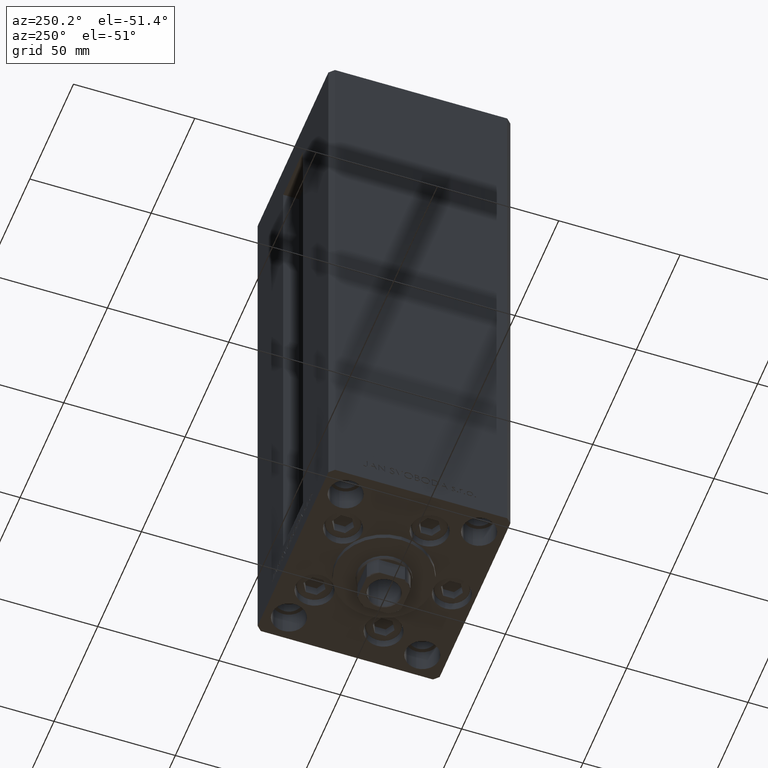
[diagram: clean part render]
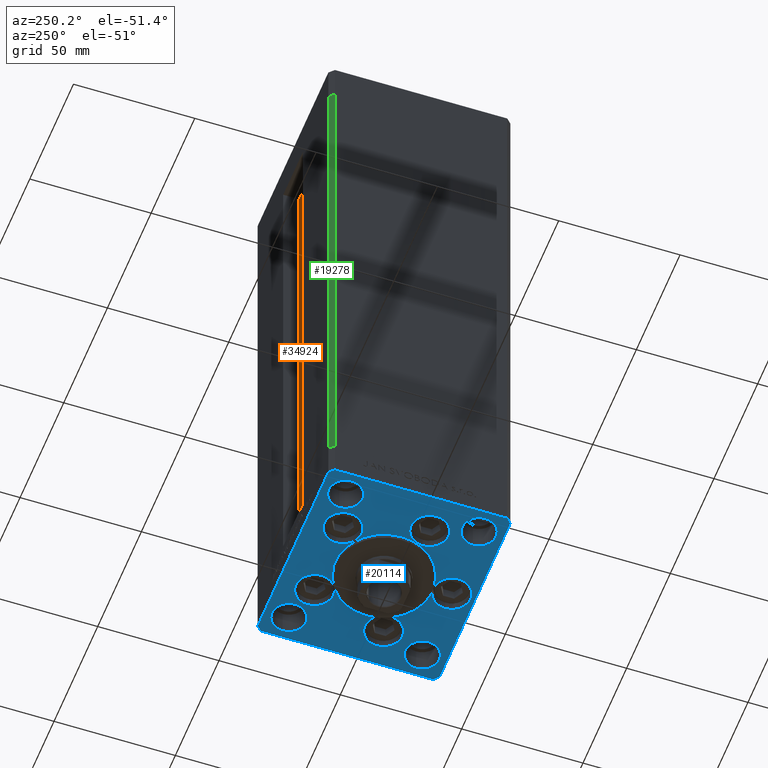
[diagram: same view with three faces highlighted in distinct colors, each labeled with its STEP entity id]
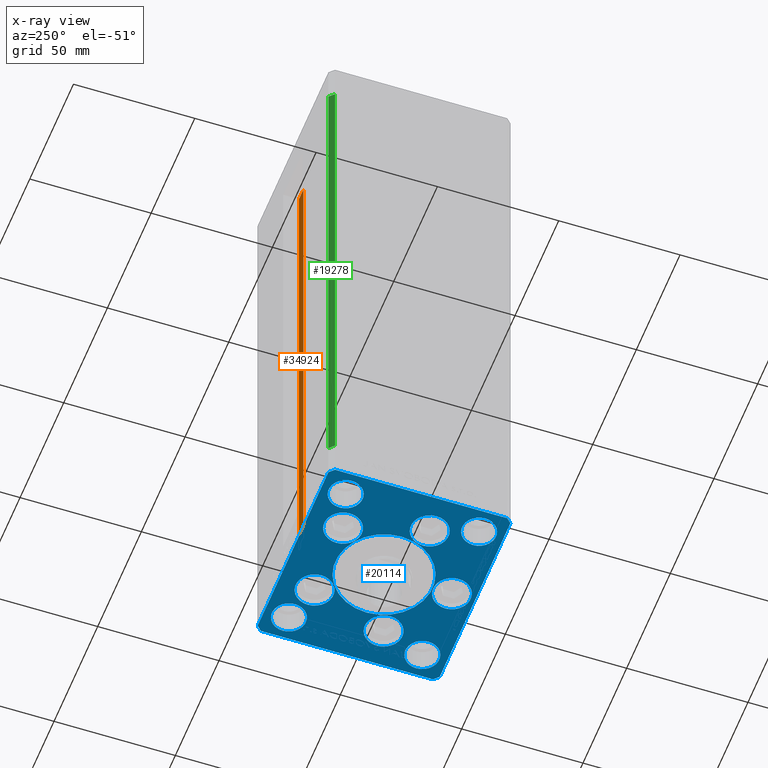
[diagram: x-ray of the same camera — body ghosted, the three highlighted faces saturated]
A machine part, auxiliary view with three faces highlighted in distinct colors.
The next image is the same camera in x-ray (body ghosted, the three faces saturated) — at least one of them is partly hidden behind the body in this view.
Their STEP definitions:

[orange] entity #34924 — the highlighted planar face has unit normal (0, -1, 0).
#109 = CARTESIAN_POINT ( 'NONE',  ( 6.183333333333999704, 30.99999999999999289, 0.000000000000000000 ) ) ;
#1024 = AXIS2_PLACEMENT_3D ( 'NONE', #109, #29787, #26069 ) ;
#2411 = DIRECTION ( 'NONE',  ( -0.000000000000000000, -0.000000000000000000, 1.000000000000000000 ) ) ;
#2909 = VECTOR ( 'NONE', #2411, 1000.000000000000000 ) ;
#4382 = LINE ( 'NONE', #45738, #4788 ) ;
#4443 = VECTOR ( 'NONE', #27828, 1000.000000000000000 ) ;
#4788 = VECTOR ( 'NONE', #12037, 1000.000000000000000 ) ;
#6623 = EDGE_CURVE ( 'NONE', #21460, #32522, #42474, .T. ) ;
#7208 = EDGE_CURVE ( 'NONE', #38177, #16108, #39365, .T. ) ;
#9407 = CARTESIAN_POINT ( 'NONE',  ( 11.25000000000000000, 30.99999999999999289, 0.000000000000000000 ) ) ;
#12037 = DIRECTION ( 'NONE',  ( -0.000000000000000000, -0.000000000000000000, 1.000000000000000000 ) ) ;
#12590 = CARTESIAN_POINT ( 'NONE',  ( 6.183333333333999704, 30.99999999999999289, 0.000000000000000000 ) ) ;
#16108 = VERTEX_POINT ( 'NONE', #9407 ) ;
#17053 = CARTESIAN_POINT ( 'NONE',  ( 6.183333333333999704, 30.99999999999999289, 0.000000000000000000 ) ) ;
#17978 = LINE ( 'NONE', #36322, #2909 ) ;
#18389 = PLANE ( 'NONE',  #1024 ) ;
#18895 = FACE_OUTER_BOUND ( 'NONE', #34555, .T. ) ;
#21002 = DIRECTION ( 'NONE',  ( 1.000000000000000000, 0.000000000000000000, 0.000000000000000000 ) ) ;
#21460 = VERTEX_POINT ( 'NONE', #37652 ) ;
#21543 = CARTESIAN_POINT ( 'NONE',  ( 6.183333333333999704, 30.99999999999999289, 218.5000000000000000 ) ) ;
#24552 = ORIENTED_EDGE ( 'NONE', *, *, #48792, .T. ) ;
#26069 = DIRECTION ( 'NONE',  ( 0.000000000000000000, -0.000000000000000000, -1.000000000000000000 ) ) ;
#26579 = ORIENTED_EDGE ( 'NONE', *, *, #29943, .F. ) ;
#27828 = DIRECTION ( 'NONE',  ( -1.000000000000000000, 0.000000000000000000, 0.000000000000000000 ) ) ;
#29787 = DIRECTION ( 'NONE',  ( 0.000000000000000000, -1.000000000000000000, 0.000000000000000000 ) ) ;
#29943 = EDGE_CURVE ( 'NONE', #16108, #21460, #4382, .T. ) ;
#31277 = VECTOR ( 'NONE', #21002, 1000.000000000000000 ) ;
#31775 = CARTESIAN_POINT ( 'NONE',  ( 0.000000000000000000, 30.99999999999999289, 218.5000000000000000 ) ) ;
#32522 = VERTEX_POINT ( 'NONE', #21543 ) ;
#34247 = ORIENTED_EDGE ( 'NONE', *, *, #7208, .F. ) ;
#34555 = EDGE_LOOP ( 'NONE', ( #26579, #34247, #24552, #46851 ) ) ;
#34924 = ADVANCED_FACE ( 'NONE', ( #18895 ), #18389, .F. ) ;
#36322 = CARTESIAN_POINT ( 'NONE',  ( 6.183333333333999704, 30.99999999999999289, 0.000000000000000000 ) ) ;
#37652 = CARTESIAN_POINT ( 'NONE',  ( 11.25000000000000000, 30.99999999999999289, 218.5000000000000000 ) ) ;
#38177 = VERTEX_POINT ( 'NONE', #12590 ) ;
#39365 = LINE ( 'NONE', #17053, #31277 ) ;
#42474 = LINE ( 'NONE', #31775, #4443 ) ;
#45738 = CARTESIAN_POINT ( 'NONE',  ( 11.25000000000000000, 30.99999999999999289, 0.000000000000000000 ) ) ;
#46851 = ORIENTED_EDGE ( 'NONE', *, *, #6623, .F. ) ;
#48792 = EDGE_CURVE ( 'NONE', #38177, #32522, #17978, .T. ) ;

[blue] entity #20114 — the highlighted planar face has unit normal (0, 0, -1).
#191 = DIRECTION ( 'NONE',  ( 1.000000000000000000, 0.000000000000000000, 0.000000000000000000 ) ) ;
#410 = CARTESIAN_POINT ( 'NONE',  ( -40.50000000000000000, 37.49999999999997158, 0.000000000000000000 ) ) ;
#633 = CIRCLE ( 'NONE', #17987, 7.750000000000000000 ) ;
#793 = VERTEX_POINT ( 'NONE', #27015 ) ;
#835 = DIRECTION ( 'NONE',  ( 1.000000000000000000, 0.000000000000000000, 0.000000000000000000 ) ) ;
#891 = VECTOR ( 'NONE', #47366, 1000.000000000000000 ) ;
#1085 = EDGE_LOOP ( 'NONE', ( #18979, #23173 ) ) ;
#1589 = FACE_BOUND ( 'NONE', #5513, .T. ) ;
#2130 = EDGE_CURVE ( 'NONE', #33758, #9344, #47001, .T. ) ;
#2236 = AXIS2_PLACEMENT_3D ( 'NONE', #37755, #45672, #33519 ) ;
#2307 = FACE_OUTER_BOUND ( 'NONE', #38539, .T. ) ;
#3190 = EDGE_CURVE ( 'NONE', #34602, #22687, #47021, .T. ) ;
#3786 = CARTESIAN_POINT ( 'NONE',  ( 0.000000000000000000, -28.00000000000000000, 0.000000000000000000 ) ) ;
#4111 = LINE ( 'NONE', #410, #12055 ) ;
#4154 = DIRECTION ( 'NONE',  ( -1.000000000000000000, -4.283267841918041508E-16, 0.000000000000000000 ) ) ;
#4518 = DIRECTION ( 'NONE',  ( 1.000000000000000000, 0.000000000000000000, 0.000000000000000000 ) ) ;
#4608 = CIRCLE ( 'NONE', #2236, 7.750000000000000000 ) ;
#4901 = ORIENTED_EDGE ( 'NONE', *, *, #36784, .F. ) ;
#5010 = DIRECTION ( 'NONE',  ( 0.000000000000000000, 0.000000000000000000, 1.000000000000000000 ) ) ;
#5038 = FACE_BOUND ( 'NONE', #46854, .T. ) ;
#5108 = CARTESIAN_POINT ( 'NONE',  ( -42.50000000000000000, -35.50000000000004263, 0.000000000000000000 ) ) ;
#5284 = FACE_BOUND ( 'NONE', #7775, .T. ) ;
#5342 = CARTESIAN_POINT ( 'NONE',  ( 32.50000000000000000, 27.49999999999999645, 0.000000000000000000 ) ) ;
#5432 = VERTEX_POINT ( 'NONE', #10667 ) ;
#5513 = EDGE_LOOP ( 'NONE', ( #27358, #38682 ) ) ;
#5702 = DIRECTION ( 'NONE',  ( 1.000000000000000000, 0.000000000000000000, 0.000000000000000000 ) ) ;
#5793 = CIRCLE ( 'NONE', #46143, 7.750000000000000000 ) ;
#5935 = AXIS2_PLACEMENT_3D ( 'NONE', #32333, #33073, #30774 ) ;
#5950 = CARTESIAN_POINT ( 'NONE',  ( 32.50000000000000000, 27.49999999999999645, 0.000000000000000000 ) ) ;
#6064 = EDGE_CURVE ( 'NONE', #31593, #37046, #31251, .T. ) ;
#6141 = AXIS2_PLACEMENT_3D ( 'NONE', #45175, #11238, #26333 ) ;
#6692 = DIRECTION ( 'NONE',  ( 0.7071067811865474617, 0.7071067811865474617, 0.000000000000000000 ) ) ;
#6859 = DIRECTION ( 'NONE',  ( 1.000000000000000000, 0.000000000000000000, 0.000000000000000000 ) ) ;
#7184 = LINE ( 'NONE', #29713, #12469 ) ;
#7239 = DIRECTION ( 'NONE',  ( 1.000000000000000000, 0.000000000000000000, 0.000000000000000000 ) ) ;
#7724 = EDGE_CURVE ( 'NONE', #19326, #28072, #16301, .T. ) ;
#7775 = EDGE_LOOP ( 'NONE', ( #22292, #4901 ) ) ;
#8591 = EDGE_CURVE ( 'NONE', #28072, #19326, #44832, .T. ) ;
#8604 = VERTEX_POINT ( 'NONE', #10954 ) ;
#8779 = CIRCLE ( 'NONE', #21418, 6.999999999999999112 ) ;
#8963 = DIRECTION ( 'NONE',  ( 0.000000000000000000, 0.000000000000000000, 1.000000000000000000 ) ) ;
#9232 = FACE_BOUND ( 'NONE', #41714, .T. ) ;
#9344 = VERTEX_POINT ( 'NONE', #26304 ) ;
#9402 = AXIS2_PLACEMENT_3D ( 'NONE', #43347, #9414, #5702 ) ;
#9414 = DIRECTION ( 'NONE',  ( 0.000000000000000000, 0.000000000000000000, 1.000000000000000000 ) ) ;
#9504 = ORIENTED_EDGE ( 'NONE', *, *, #16868, .T. ) ;
#9513 = CIRCLE ( 'NONE', #20563, 7.750000000000000000 ) ;
#10208 = CARTESIAN_POINT ( 'NONE',  ( 40.50000000000001421, -37.49999999999992184, 0.000000000000000000 ) ) ;
#10240 = VERTEX_POINT ( 'NONE', #44715 ) ;
#10329 = CARTESIAN_POINT ( 'NONE',  ( -16.32291334290544071, 22.74999999999999289, 0.000000000000000000 ) ) ;
#10401 = CARTESIAN_POINT ( 'NONE',  ( 7.750000000000000000, -28.00000000000000000, 0.000000000000000000 ) ) ;
#10493 = VERTEX_POINT ( 'NONE', #23395 ) ;
#10667 = CARTESIAN_POINT ( 'NONE',  ( 40.50000000000000711, 37.50000000000000711, 0.000000000000000000 ) ) ;
#10690 = CARTESIAN_POINT ( 'NONE',  ( -20.00000000000000000, -6.938893903907228378E-15, 0.000000000000000000 ) ) ;
#10954 = CARTESIAN_POINT ( 'NONE',  ( -40.50000000000000000, 37.49999999999997158, 0.000000000000000000 ) ) ;
#10958 = DIRECTION ( 'NONE',  ( 0.000000000000000000, 0.000000000000000000, 1.000000000000000000 ) ) ;
#11143 = CARTESIAN_POINT ( 'NONE',  ( -42.50000000000000711, 35.50000000000000000, 0.000000000000000000 ) ) ;
#11174 = EDGE_CURVE ( 'NONE', #793, #17129, #633, .T. ) ;
#11238 = DIRECTION ( 'NONE',  ( 0.000000000000000000, 0.000000000000000000, 1.000000000000000000 ) ) ;
#11424 = VECTOR ( 'NONE', #19124, 1000.000000000000000 ) ;
#11634 = EDGE_CURVE ( 'NONE', #9344, #40468, #16252, .T. ) ;
#11677 = ORIENTED_EDGE ( 'NONE', *, *, #34591, .T. ) ;
#11825 = AXIS2_PLACEMENT_3D ( 'NONE', #43872, #5010, #21067 ) ;
#12055 = VECTOR ( 'NONE', #30589, 1000.000000000000000 ) ;
#12079 = EDGE_CURVE ( 'NONE', #28068, #15478, #7184, .T. ) ;
#12294 = DIRECTION ( 'NONE',  ( 0.000000000000000000, 0.000000000000000000, 1.000000000000000000 ) ) ;
#12469 = VECTOR ( 'NONE', #6692, 1000.000000000000114 ) ;
#12568 = ORIENTED_EDGE ( 'NONE', *, *, #41976, .F. ) ;
#12933 = CARTESIAN_POINT ( 'NONE',  ( 42.50000000000000711, -35.49999999999992895, 0.000000000000000000 ) ) ;
#12960 = VECTOR ( 'NONE', #28907, 1000.000000000000000 ) ;
#13055 = CARTESIAN_POINT ( 'NONE',  ( -32.50000000000000000, -27.50000000000000355, 0.000000000000000000 ) ) ;
#13156 = EDGE_LOOP ( 'NONE', ( #24371, #44180 ) ) ;
#13422 = DIRECTION ( 'NONE',  ( -0.000000000000000000, 0.000000000000000000, 1.000000000000000000 ) ) ;
#13480 = CARTESIAN_POINT ( 'NONE',  ( 26.39865316429777664, -9.333333333333330373, 0.000000000000000000 ) ) ;
#13603 = EDGE_CURVE ( 'NONE', #33649, #33450, #44826, .T. ) ;
#13956 = AXIS2_PLACEMENT_3D ( 'NONE', #32243, #30508, #7239 ) ;
#14409 = LINE ( 'NONE', #26055, #11424 ) ;
#15013 = CARTESIAN_POINT ( 'NONE',  ( 26.39865316429777664, -9.333333333333330373, 0.000000000000000000 ) ) ;
#15478 = VERTEX_POINT ( 'NONE', #36997 ) ;
#15643 = EDGE_CURVE ( 'NONE', #21567, #32270, #30680, .T. ) ;
#15970 = ORIENTED_EDGE ( 'NONE', *, *, #19942, .F. ) ;
#16252 = LINE ( 'NONE', #5108, #37814 ) ;
#16301 = CIRCLE ( 'NONE', #32113, 6.999999999999999112 ) ;
#16633 = DIRECTION ( 'NONE',  ( 0.000000000000000000, 0.000000000000000000, 1.000000000000000000 ) ) ;
#16638 = EDGE_CURVE ( 'NONE', #17129, #793, #4608, .T. ) ;
#16664 = DIRECTION ( 'NONE',  ( 1.000000000000000000, 0.000000000000000000, 0.000000000000000000 ) ) ;
#16868 = EDGE_CURVE ( 'NONE', #40468, #28068, #21575, .T. ) ;
#16930 = AXIS2_PLACEMENT_3D ( 'NONE', #5950, #28234, #29218 ) ;
#17128 = VERTEX_POINT ( 'NONE', #45854 ) ;
#17129 = VERTEX_POINT ( 'NONE', #42865 ) ;
#17145 = FACE_BOUND ( 'NONE', #18978, .T. ) ;
#17980 = EDGE_CURVE ( 'NONE', #30444, #23871, #18868, .T. ) ;
#17987 = AXIS2_PLACEMENT_3D ( 'NONE', #38380, #42580, #34888 ) ;
#18391 = EDGE_LOOP ( 'NONE', ( #29868, #15970 ) ) ;
#18502 = CARTESIAN_POINT ( 'NONE',  ( 40.50000000000000711, 37.50000000000000711, 0.000000000000000000 ) ) ;
#18518 = DIRECTION ( 'NONE',  ( 1.000000000000000000, 0.000000000000000000, 0.000000000000000000 ) ) ;
#18868 = CIRCLE ( 'NONE', #9402, 6.999999999999999112 ) ;
#18978 = EDGE_LOOP ( 'NONE', ( #36498, #25569 ) ) ;
#18979 = ORIENTED_EDGE ( 'NONE', *, *, #19931, .F. ) ;
#19124 = DIRECTION ( 'NONE',  ( -0.7071067811865524577, 0.7071067811865426878, 0.000000000000000000 ) ) ;
#19326 = VERTEX_POINT ( 'NONE', #32172 ) ;
#19364 = CARTESIAN_POINT ( 'NONE',  ( 25.50000000000000355, -27.50000000000000355, 0.000000000000000000 ) ) ;
#19931 = EDGE_CURVE ( 'NONE', #22687, #34602, #8779, .T. ) ;
#19942 = EDGE_CURVE ( 'NONE', #10240, #17128, #42804, .T. ) ;
#20102 = EDGE_CURVE ( 'NONE', #15478, #30777, #39691, .T. ) ;
#20114 = ADVANCED_FACE ( 'NONE', ( #36209, #5284, #32484, #24327, #47124, #17145, #27806, #9232, #1589, #5038, #2307 ), #39454, .T. ) ;
#20367 = CARTESIAN_POINT ( 'NONE',  ( 0.000000000000000000, 0.000000000000000000, 0.000000000000000000 ) ) ;
#20416 = EDGE_LOOP ( 'NONE', ( #23101, #29872 ) ) ;
#20429 = DIRECTION ( 'NONE',  ( 1.000000000000000000, 0.000000000000000000, 0.000000000000000000 ) ) ;
#20563 = AXIS2_PLACEMENT_3D ( 'NONE', #34588, #12294, #42524 ) ;
#20587 = VERTEX_POINT ( 'NONE', #29638 ) ;
#21067 = DIRECTION ( 'NONE',  ( 1.000000000000000000, 0.000000000000000000, 0.000000000000000000 ) ) ;
#21084 = CARTESIAN_POINT ( 'NONE',  ( -40.50000000000000711, -37.50000000000003553, 0.000000000000000000 ) ) ;
#21154 = DIRECTION ( 'NONE',  ( 1.000000000000000000, 0.000000000000000000, 0.000000000000000000 ) ) ;
#21418 = AXIS2_PLACEMENT_3D ( 'NONE', #5342, #47423, #20429 ) ;
#21567 = VERTEX_POINT ( 'NONE', #47019 ) ;
#21575 = LINE ( 'NONE', #21084, #39418 ) ;
#21835 = CARTESIAN_POINT ( 'NONE',  ( -25.50000000000000355, 27.50000000000000711, 0.000000000000000000 ) ) ;
#21843 = DIRECTION ( 'NONE',  ( 1.000000000000000000, 0.000000000000000000, 0.000000000000000000 ) ) ;
#22001 = VERTEX_POINT ( 'NONE', #10401 ) ;
#22292 = ORIENTED_EDGE ( 'NONE', *, *, #15643, .F. ) ;
#22687 = VERTEX_POINT ( 'NONE', #43674 ) ;
#23101 = ORIENTED_EDGE ( 'NONE', *, *, #47841, .F. ) ;
#23173 = ORIENTED_EDGE ( 'NONE', *, *, #3190, .F. ) ;
#23395 = CARTESIAN_POINT ( 'NONE',  ( 39.50000000000000000, -27.50000000000000355, 0.000000000000000000 ) ) ;
#23728 = EDGE_CURVE ( 'NONE', #33450, #33649, #28422, .T. ) ;
#23871 = VERTEX_POINT ( 'NONE', #48556 ) ;
#24327 = FACE_BOUND ( 'NONE', #18391, .T. ) ;
#24371 = ORIENTED_EDGE ( 'NONE', *, *, #25593, .F. ) ;
#24442 = ORIENTED_EDGE ( 'NONE', *, *, #20102, .T. ) ;
#24451 = DIRECTION ( 'NONE',  ( 1.000000000000000000, 0.000000000000000000, 0.000000000000000000 ) ) ;
#24596 = AXIS2_PLACEMENT_3D ( 'NONE', #30868, #42518, #35547 ) ;
#24615 = ORIENTED_EDGE ( 'NONE', *, *, #28392, .F. ) ;
#24873 = DIRECTION ( 'NONE',  ( 0.000000000000000000, 0.000000000000000000, 1.000000000000000000 ) ) ;
#25049 = DIRECTION ( 'NONE',  ( 1.000000000000000000, 1.370645709413773283E-15, 0.000000000000000000 ) ) ;
#25569 = ORIENTED_EDGE ( 'NONE', *, *, #23728, .F. ) ;
#25593 = EDGE_CURVE ( 'NONE', #22001, #20587, #9513, .T. ) ;
#26055 = CARTESIAN_POINT ( 'NONE',  ( 42.50000000000001421, 35.50000000000002132, 0.000000000000000000 ) ) ;
#26075 = ORIENTED_EDGE ( 'NONE', *, *, #8591, .F. ) ;
#26193 = CARTESIAN_POINT ( 'NONE',  ( 0.000000000000000000, -6.938893903907228378E-15, 0.000000000000000000 ) ) ;
#26304 = CARTESIAN_POINT ( 'NONE',  ( -42.50000000000000000, -35.50000000000004263, 0.000000000000000000 ) ) ;
#26333 = DIRECTION ( 'NONE',  ( 1.000000000000000000, 0.000000000000000000, 0.000000000000000000 ) ) ;
#27013 = VECTOR ( 'NONE', #4154, 1000.000000000000000 ) ;
#27015 = CARTESIAN_POINT ( 'NONE',  ( 24.07291334290544071, 22.74999999999999289, 0.000000000000000000 ) ) ;
#27181 = AXIS2_PLACEMENT_3D ( 'NONE', #13055, #28169, #24451 ) ;
#27353 = AXIS2_PLACEMENT_3D ( 'NONE', #15013, #29384, #191 ) ;
#27356 = ORIENTED_EDGE ( 'NONE', *, *, #12079, .T. ) ;
#27358 = ORIENTED_EDGE ( 'NONE', *, *, #38733, .F. ) ;
#27806 = FACE_BOUND ( 'NONE', #1085, .T. ) ;
#28068 = VERTEX_POINT ( 'NONE', #10208 ) ;
#28072 = VERTEX_POINT ( 'NONE', #21835 ) ;
#28169 = DIRECTION ( 'NONE',  ( 0.000000000000000000, 0.000000000000000000, 1.000000000000000000 ) ) ;
#28234 = DIRECTION ( 'NONE',  ( 0.000000000000000000, 0.000000000000000000, 1.000000000000000000 ) ) ;
#28392 = EDGE_CURVE ( 'NONE', #33585, #10493, #45970, .T. ) ;
#28422 = CIRCLE ( 'NONE', #11825, 7.750000000000000000 ) ;
#28748 = DIRECTION ( 'NONE',  ( 1.000000000000000000, 0.000000000000000000, 0.000000000000000000 ) ) ;
#28907 = DIRECTION ( 'NONE',  ( 9.773090005503134168E-17, -1.000000000000000000, 0.000000000000000000 ) ) ;
#29218 = DIRECTION ( 'NONE',  ( 1.000000000000000000, 0.000000000000000000, 0.000000000000000000 ) ) ;
#29384 = DIRECTION ( 'NONE',  ( 0.000000000000000000, 0.000000000000000000, 1.000000000000000000 ) ) ;
#29486 = ORIENTED_EDGE ( 'NONE', *, *, #40230, .T. ) ;
#29638 = CARTESIAN_POINT ( 'NONE',  ( -7.750000000000000000, -28.00000000000000000, 0.000000000000000000 ) ) ;
#29655 = AXIS2_PLACEMENT_3D ( 'NONE', #30022, #10958, #4518 ) ;
#29713 = CARTESIAN_POINT ( 'NONE',  ( 40.50000000000001421, -37.49999999999992184, 0.000000000000000000 ) ) ;
#29868 = ORIENTED_EDGE ( 'NONE', *, *, #43709, .F. ) ;
#29872 = ORIENTED_EDGE ( 'NONE', *, *, #6064, .F. ) ;
#29895 = LINE ( 'NONE', #18502, #27013 ) ;
#30022 = CARTESIAN_POINT ( 'NONE',  ( 0.000000000000000000, -6.938893903907228378E-15, 0.000000000000000000 ) ) ;
#30444 = VERTEX_POINT ( 'NONE', #38005 ) ;
#30508 = DIRECTION ( 'NONE',  ( 0.000000000000000000, 0.000000000000000000, 1.000000000000000000 ) ) ;
#30589 = DIRECTION ( 'NONE',  ( -0.7071067811865536790, -0.7071067811865414665, 0.000000000000000000 ) ) ;
#30680 = CIRCLE ( 'NONE', #6141, 7.750000000000000000 ) ;
#30774 = DIRECTION ( 'NONE',  ( 1.000000000000000000, 0.000000000000000000, 0.000000000000000000 ) ) ;
#30777 = VERTEX_POINT ( 'NONE', #34395 ) ;
#30868 = CARTESIAN_POINT ( 'NONE',  ( 32.50000000000000000, -27.50000000000000355, 0.000000000000000000 ) ) ;
#31117 = CARTESIAN_POINT ( 'NONE',  ( -40.50000000000000711, -37.50000000000003553, 0.000000000000000000 ) ) ;
#31251 = CIRCLE ( 'NONE', #29655, 20.00000000000000000 ) ;
#31387 = EDGE_CURVE ( 'NONE', #20587, #22001, #33292, .T. ) ;
#31593 = VERTEX_POINT ( 'NONE', #35668 ) ;
#32113 = AXIS2_PLACEMENT_3D ( 'NONE', #34733, #8963, #835 ) ;
#32118 = CARTESIAN_POINT ( 'NONE',  ( -42.50000000000000711, 35.50000000000000000, 0.000000000000000000 ) ) ;
#32172 = CARTESIAN_POINT ( 'NONE',  ( -39.50000000000000000, 27.50000000000000711, 0.000000000000000000 ) ) ;
#32243 = CARTESIAN_POINT ( 'NONE',  ( -32.50000000000000000, 27.50000000000000711, 0.000000000000000000 ) ) ;
#32270 = VERTEX_POINT ( 'NONE', #46359 ) ;
#32333 = CARTESIAN_POINT ( 'NONE',  ( 32.50000000000000000, -27.50000000000000355, 0.000000000000000000 ) ) ;
#32484 = FACE_BOUND ( 'NONE', #46380, .T. ) ;
#33073 = DIRECTION ( 'NONE',  ( 0.000000000000000000, 0.000000000000000000, 1.000000000000000000 ) ) ;
#33193 = EDGE_CURVE ( 'NONE', #5432, #8604, #29895, .T. ) ;
#33272 = AXIS2_PLACEMENT_3D ( 'NONE', #20367, #13422, #16664 ) ;
#33292 = CIRCLE ( 'NONE', #42797, 7.750000000000000000 ) ;
#33450 = VERTEX_POINT ( 'NONE', #33735 ) ;
#33519 = DIRECTION ( 'NONE',  ( 1.000000000000000000, 0.000000000000000000, 0.000000000000000000 ) ) ;
#33585 = VERTEX_POINT ( 'NONE', #19364 ) ;
#33649 = VERTEX_POINT ( 'NONE', #44580 ) ;
#33735 = CARTESIAN_POINT ( 'NONE',  ( -34.14865316429777664, -9.333333333333328596, 0.000000000000000000 ) ) ;
#33758 = VERTEX_POINT ( 'NONE', #11143 ) ;
#34395 = CARTESIAN_POINT ( 'NONE',  ( 42.50000000000001421, 35.50000000000002132, 0.000000000000000000 ) ) ;
#34588 = CARTESIAN_POINT ( 'NONE',  ( 0.000000000000000000, -28.00000000000000000, 0.000000000000000000 ) ) ;
#34591 = EDGE_CURVE ( 'NONE', #8604, #33758, #4111, .T. ) ;
#34602 = VERTEX_POINT ( 'NONE', #45707 ) ;
#34733 = CARTESIAN_POINT ( 'NONE',  ( -32.50000000000000000, 27.50000000000000711, 0.000000000000000000 ) ) ;
#34888 = DIRECTION ( 'NONE',  ( 1.000000000000000000, 0.000000000000000000, 0.000000000000000000 ) ) ;
#35447 = CARTESIAN_POINT ( 'NONE',  ( -26.39865316429777664, -9.333333333333330373, 0.000000000000000000 ) ) ;
#35547 = DIRECTION ( 'NONE',  ( 1.000000000000000000, 0.000000000000000000, 0.000000000000000000 ) ) ;
#35668 = CARTESIAN_POINT ( 'NONE',  ( 20.00000000000000000, -4.489600305612522259E-15, 0.000000000000000000 ) ) ;
#36209 = FACE_BOUND ( 'NONE', #20416, .T. ) ;
#36498 = ORIENTED_EDGE ( 'NONE', *, *, #13603, .F. ) ;
#36784 = EDGE_CURVE ( 'NONE', #32270, #21567, #5793, .T. ) ;
#36997 = CARTESIAN_POINT ( 'NONE',  ( 42.50000000000000711, -35.49999999999992895, 0.000000000000000000 ) ) ;
#37046 = VERTEX_POINT ( 'NONE', #10690 ) ;
#37737 = AXIS2_PLACEMENT_3D ( 'NONE', #35447, #16633, #28748 ) ;
#37755 = CARTESIAN_POINT ( 'NONE',  ( 16.32291334290544071, 22.74999999999999289, 0.000000000000000000 ) ) ;
#37814 = VECTOR ( 'NONE', #43239, 1000.000000000000000 ) ;
#38005 = CARTESIAN_POINT ( 'NONE',  ( -39.50000000000000000, -27.50000000000000355, 0.000000000000000000 ) ) ;
#38044 = ORIENTED_EDGE ( 'NONE', *, *, #16638, .F. ) ;
#38268 = CIRCLE ( 'NONE', #27181, 6.999999999999999112 ) ;
#38380 = CARTESIAN_POINT ( 'NONE',  ( 16.32291334290544071, 22.74999999999999289, 0.000000000000000000 ) ) ;
#38539 = EDGE_LOOP ( 'NONE', ( #42069, #9504, #27356, #24442, #29486, #39108, #11677, #43398 ) ) ;
#38682 = ORIENTED_EDGE ( 'NONE', *, *, #17980, .F. ) ;
#38733 = EDGE_CURVE ( 'NONE', #23871, #30444, #38268, .T. ) ;
#39108 = ORIENTED_EDGE ( 'NONE', *, *, #33193, .T. ) ;
#39242 = CIRCLE ( 'NONE', #44745, 20.00000000000000000 ) ;
#39418 = VECTOR ( 'NONE', #25049, 1000.000000000000000 ) ;
#39454 = PLANE ( 'NONE',  #33272 ) ;
#39691 = LINE ( 'NONE', #12933, #891 ) ;
#39931 = CIRCLE ( 'NONE', #5935, 6.999999999999999112 ) ;
#39979 = CIRCLE ( 'NONE', #27353, 7.750000000000000000 ) ;
#40230 = EDGE_CURVE ( 'NONE', #30777, #5432, #14409, .T. ) ;
#40418 = AXIS2_PLACEMENT_3D ( 'NONE', #13480, #24873, #21154 ) ;
#40468 = VERTEX_POINT ( 'NONE', #31117 ) ;
#41714 = EDGE_LOOP ( 'NONE', ( #26075, #42681 ) ) ;
#41763 = ORIENTED_EDGE ( 'NONE', *, *, #11174, .F. ) ;
#41976 = EDGE_CURVE ( 'NONE', #10493, #33585, #39931, .T. ) ;
#42069 = ORIENTED_EDGE ( 'NONE', *, *, #11634, .T. ) ;
#42518 = DIRECTION ( 'NONE',  ( 0.000000000000000000, 0.000000000000000000, 1.000000000000000000 ) ) ;
#42524 = DIRECTION ( 'NONE',  ( 1.000000000000000000, 0.000000000000000000, 0.000000000000000000 ) ) ;
#42575 = DIRECTION ( 'NONE',  ( 0.000000000000000000, 0.000000000000000000, 1.000000000000000000 ) ) ;
#42580 = DIRECTION ( 'NONE',  ( 0.000000000000000000, 0.000000000000000000, 1.000000000000000000 ) ) ;
#42681 = ORIENTED_EDGE ( 'NONE', *, *, #7724, .F. ) ;
#42797 = AXIS2_PLACEMENT_3D ( 'NONE', #3786, #48842, #21843 ) ;
#42804 = CIRCLE ( 'NONE', #40418, 7.750000000000000000 ) ;
#42865 = CARTESIAN_POINT ( 'NONE',  ( 8.572913342905442491, 22.74999999999999289, 0.000000000000000000 ) ) ;
#43239 = DIRECTION ( 'NONE',  ( 0.7071067811865487940, -0.7071067811865463515, 0.000000000000000000 ) ) ;
#43347 = CARTESIAN_POINT ( 'NONE',  ( -32.50000000000000000, -27.50000000000000355, 0.000000000000000000 ) ) ;
#43398 = ORIENTED_EDGE ( 'NONE', *, *, #2130, .T. ) ;
#43674 = CARTESIAN_POINT ( 'NONE',  ( 39.50000000000000000, 27.49999999999999645, 0.000000000000000000 ) ) ;
#43709 = EDGE_CURVE ( 'NONE', #17128, #10240, #39979, .T. ) ;
#43872 = CARTESIAN_POINT ( 'NONE',  ( -26.39865316429777664, -9.333333333333330373, 0.000000000000000000 ) ) ;
#44180 = ORIENTED_EDGE ( 'NONE', *, *, #31387, .F. ) ;
#44499 = DIRECTION ( 'NONE',  ( 0.000000000000000000, 0.000000000000000000, 1.000000000000000000 ) ) ;
#44580 = CARTESIAN_POINT ( 'NONE',  ( -18.64865316429777664, -9.333333333333330373, 0.000000000000000000 ) ) ;
#44715 = CARTESIAN_POINT ( 'NONE',  ( 18.64865316429777664, -9.333333333333328596, 0.000000000000000000 ) ) ;
#44745 = AXIS2_PLACEMENT_3D ( 'NONE', #26193, #42575, #18518 ) ;
#44826 = CIRCLE ( 'NONE', #37737, 7.750000000000000000 ) ;
#44832 = CIRCLE ( 'NONE', #13956, 6.999999999999999112 ) ;
#45175 = CARTESIAN_POINT ( 'NONE',  ( -16.32291334290544071, 22.74999999999999289, 0.000000000000000000 ) ) ;
#45672 = DIRECTION ( 'NONE',  ( 0.000000000000000000, 0.000000000000000000, 1.000000000000000000 ) ) ;
#45707 = CARTESIAN_POINT ( 'NONE',  ( 25.50000000000000355, 27.49999999999999645, 0.000000000000000000 ) ) ;
#45854 = CARTESIAN_POINT ( 'NONE',  ( 34.14865316429777664, -9.333333333333330373, 0.000000000000000000 ) ) ;
#45970 = CIRCLE ( 'NONE', #24596, 6.999999999999999112 ) ;
#46143 = AXIS2_PLACEMENT_3D ( 'NONE', #10329, #44499, #6859 ) ;
#46359 = CARTESIAN_POINT ( 'NONE',  ( -24.07291334290544071, 22.74999999999999289, 0.000000000000000000 ) ) ;
#46380 = EDGE_LOOP ( 'NONE', ( #41763, #38044 ) ) ;
#46854 = EDGE_LOOP ( 'NONE', ( #12568, #24615 ) ) ;
#47001 = LINE ( 'NONE', #32118, #12960 ) ;
#47019 = CARTESIAN_POINT ( 'NONE',  ( -8.572913342905440715, 22.74999999999999289, 0.000000000000000000 ) ) ;
#47021 = CIRCLE ( 'NONE', #16930, 6.999999999999999112 ) ;
#47124 = FACE_BOUND ( 'NONE', #13156, .T. ) ;
#47366 = DIRECTION ( 'NONE',  ( 9.773090005503145261E-17, 1.000000000000000000, 0.000000000000000000 ) ) ;
#47423 = DIRECTION ( 'NONE',  ( 0.000000000000000000, 0.000000000000000000, 1.000000000000000000 ) ) ;
#47841 = EDGE_CURVE ( 'NONE', #37046, #31593, #39242, .T. ) ;
#48556 = CARTESIAN_POINT ( 'NONE',  ( -25.50000000000000355, -27.50000000000000355, 0.000000000000000000 ) ) ;
#48842 = DIRECTION ( 'NONE',  ( 0.000000000000000000, 0.000000000000000000, 1.000000000000000000 ) ) ;

[green] entity #19278 — the highlighted planar face has unit normal (0.7071, -0.7071, 0).
#212 = LINE ( 'NONE', #30874, #41157 ) ;
#701 = VECTOR ( 'NONE', #27187, 1000.000000000000114 ) ;
#2904 = CARTESIAN_POINT ( 'NONE',  ( -40.50000000000000000, 37.50000000000000711, 0.000000000000000000 ) ) ;
#3365 = VERTEX_POINT ( 'NONE', #23735 ) ;
#4415 = CARTESIAN_POINT ( 'NONE',  ( -40.50000000000000000, 37.50000000000000711, 218.5000000000000000 ) ) ;
#7278 = ORIENTED_EDGE ( 'NONE', *, *, #16475, .T. ) ;
#11922 = PLANE ( 'NONE',  #16540 ) ;
#12398 = DIRECTION ( 'NONE',  ( 0.7071067811865500152, 0.7071067811865450192, 0.000000000000000000 ) ) ;
#12417 = LINE ( 'NONE', #28492, #39693 ) ;
#16475 = EDGE_CURVE ( 'NONE', #42850, #33387, #18047, .T. ) ;
#16540 = AXIS2_PLACEMENT_3D ( 'NONE', #27020, #23541, #12398 ) ;
#16604 = FACE_OUTER_BOUND ( 'NONE', #31774, .T. ) ;
#18047 = LINE ( 'NONE', #33153, #701 ) ;
#19278 = ADVANCED_FACE ( 'NONE', ( #16604 ), #11922, .F. ) ;
#19721 = DIRECTION ( 'NONE',  ( -0.7071067811865500152, -0.7071067811865451302, 0.000000000000000000 ) ) ;
#20080 = DIRECTION ( 'NONE',  ( -0.000000000000000000, -0.000000000000000000, -1.000000000000000000 ) ) ;
#23541 = DIRECTION ( 'NONE',  ( 0.7071067811865450192, -0.7071067811865500152, 0.000000000000000000 ) ) ;
#23735 = CARTESIAN_POINT ( 'NONE',  ( -40.50000000000000000, 37.50000000000000711, 218.5000000000000000 ) ) ;
#24128 = ORIENTED_EDGE ( 'NONE', *, *, #47791, .T. ) ;
#25522 = EDGE_CURVE ( 'NONE', #3365, #39085, #212, .T. ) ;
#27020 = CARTESIAN_POINT ( 'NONE',  ( -40.50000000000000000, 37.50000000000000711, 218.5000000000000000 ) ) ;
#27187 = DIRECTION ( 'NONE',  ( -0.7071067811865500152, -0.7071067811865451302, 0.000000000000000000 ) ) ;
#28492 = CARTESIAN_POINT ( 'NONE',  ( -42.50000000000000711, 35.50000000000001421, 218.5000000000000000 ) ) ;
#28950 = ORIENTED_EDGE ( 'NONE', *, *, #33630, .F. ) ;
#30874 = CARTESIAN_POINT ( 'NONE',  ( -40.50000000000000000, 37.50000000000000711, 218.5000000000000000 ) ) ;
#31352 = CARTESIAN_POINT ( 'NONE',  ( -42.50000000000000711, 35.50000000000001421, 0.000000000000000000 ) ) ;
#31774 = EDGE_LOOP ( 'NONE', ( #7278, #28950, #34784, #24128 ) ) ;
#33153 = CARTESIAN_POINT ( 'NONE',  ( -40.50000000000000000, 37.50000000000000711, 0.000000000000000000 ) ) ;
#33387 = VERTEX_POINT ( 'NONE', #31352 ) ;
#33630 = EDGE_CURVE ( 'NONE', #39085, #33387, #12417, .T. ) ;
#34784 = ORIENTED_EDGE ( 'NONE', *, *, #25522, .F. ) ;
#36522 = CARTESIAN_POINT ( 'NONE',  ( -42.50000000000000711, 35.50000000000001421, 218.5000000000000000 ) ) ;
#37604 = DIRECTION ( 'NONE',  ( -0.000000000000000000, -0.000000000000000000, -1.000000000000000000 ) ) ;
#39085 = VERTEX_POINT ( 'NONE', #36522 ) ;
#39693 = VECTOR ( 'NONE', #20080, 1000.000000000000000 ) ;
#41157 = VECTOR ( 'NONE', #19721, 1000.000000000000114 ) ;
#42850 = VERTEX_POINT ( 'NONE', #2904 ) ;
#45773 = LINE ( 'NONE', #4415, #46342 ) ;
#46342 = VECTOR ( 'NONE', #37604, 1000.000000000000000 ) ;
#47791 = EDGE_CURVE ( 'NONE', #3365, #42850, #45773, .T. ) ;